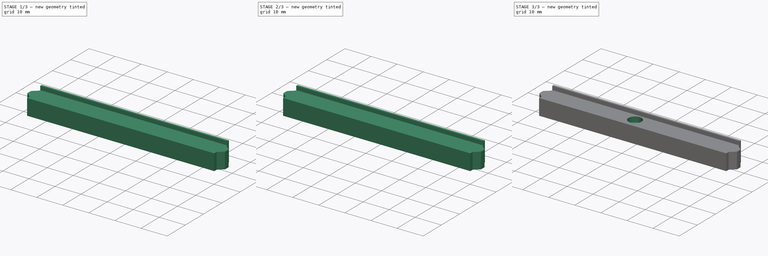
[diagram: build sequence overview — one tinted view per stage of 3, left to right]
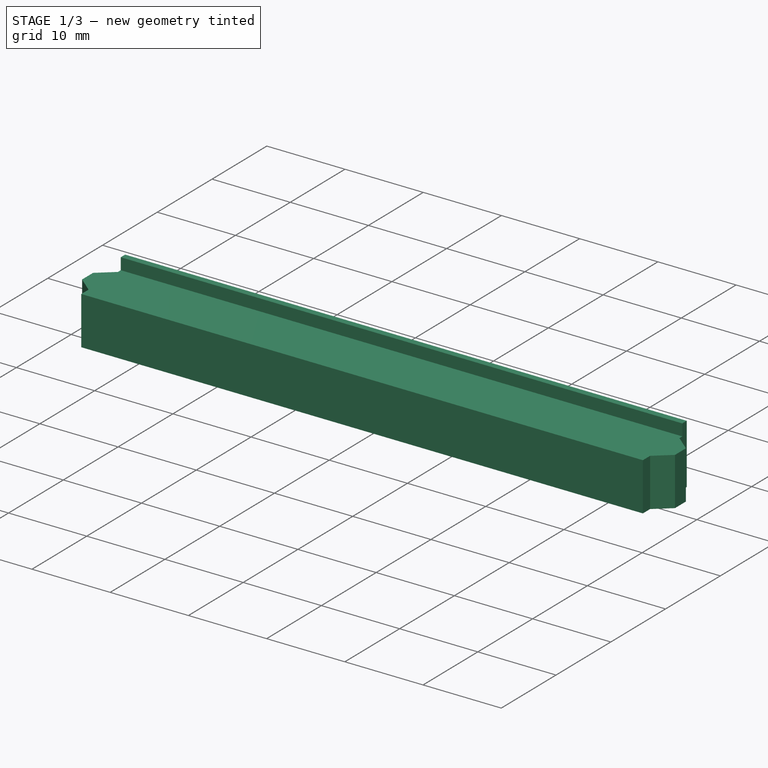
[diagram: stage 1 of 3 — iso view after this stage's code; geometry added in this stage tinted green]
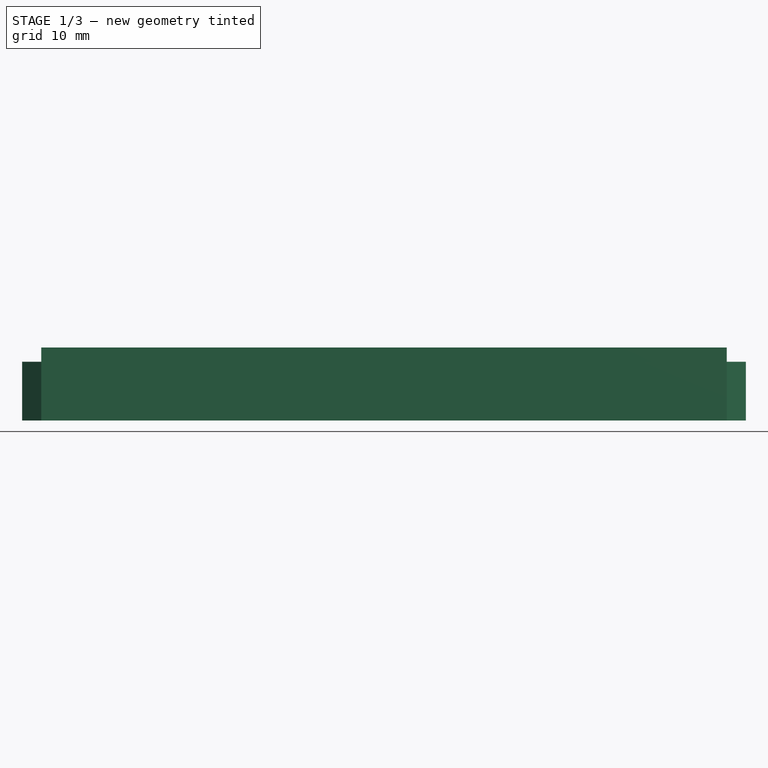
[diagram: stage 1 of 3 — front view after this stage's code; geometry added in this stage tinted green]
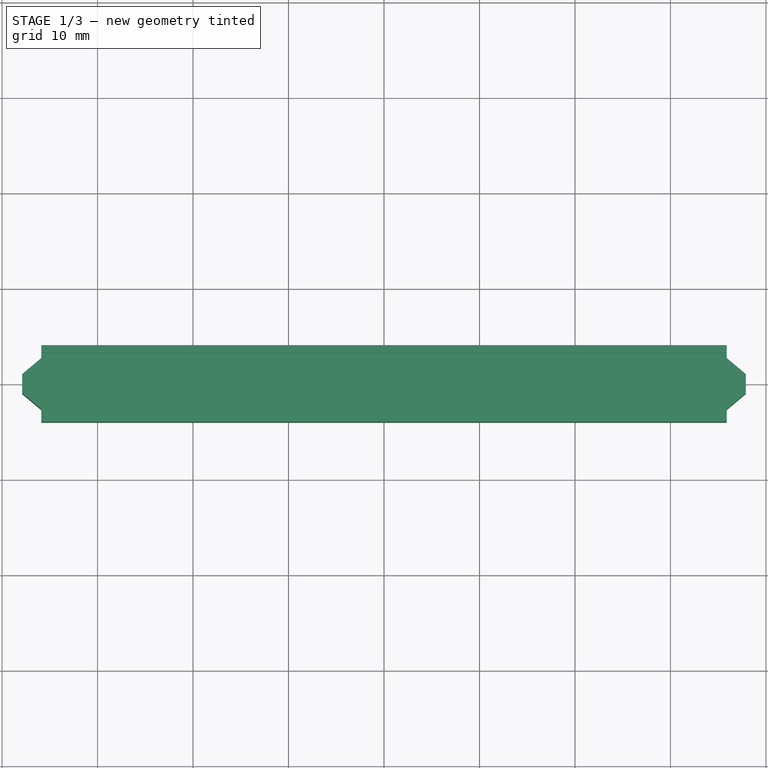
[diagram: stage 1 of 3 — top view after this stage's code; geometry added in this stage tinted green]
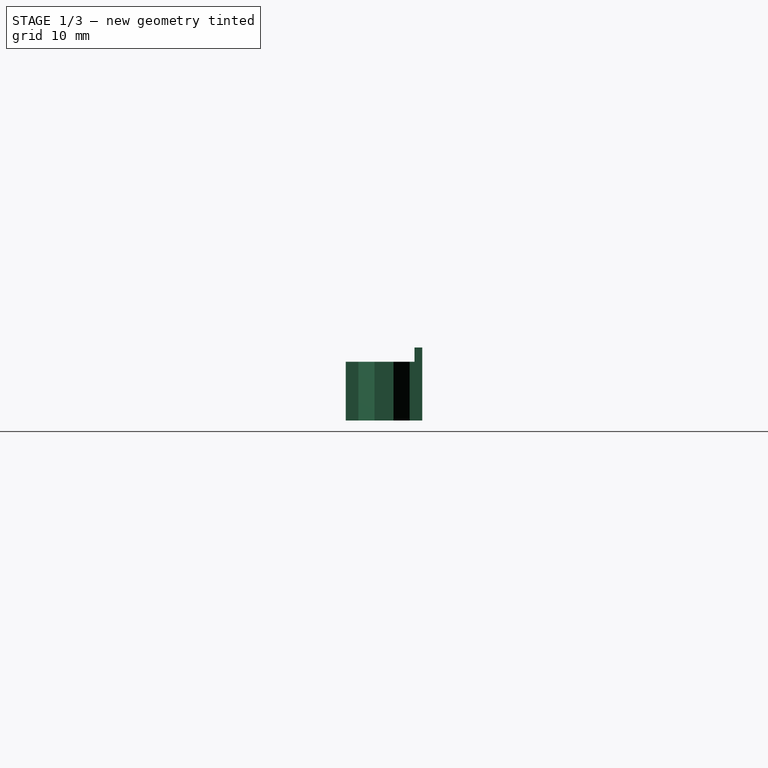
[diagram: stage 1 of 3 — right view after this stage's code; geometry added in this stage tinted green]
FCSTD DOCUMENT  (FreeCAD 2022.1021R26244 +5249 (Git))
Label: pack_top_conn_beam
License: All rights reserved
LicenseURL: http://en.wikipedia.org/wiki/All_rights_reserved
objects: Sketcher::SketchObject×4, PartDesign::Pad×4, PartDesign::Fillet×1, PartDesign::Body×1
note: 24 computed .brp shape members not serialized (recipe doc carries the construction recipe); baked Part::Feature solids carry a one-line shape summary decoded from their .brp

FEATURE [Sketcher::SketchObject] Sketch
  ArcFitTolerance = 1e-06
  AttachmentSupport = -> [XY_Plane]
  ExternalBSplineMaxDegree = 5
  ExternalBSplineTolerance = 0.0001
  FullyConstrained = true
  InternalTolerance = 1e-06
  MakeInternals = false
  MapMode = 5
  Support = -> [XY_Plane]
  TreeRank = 13
  expr: Constraints[20] = 72 - 0.2
  sketch-geometry (14):
    g0: LineSegment StartX=-35.9 StartY=4 StartZ=0 EndX=35.9 EndY=4 EndZ=0
    g1: LineSegment StartX=35.9 StartY=4 StartZ=0 EndX=35.9 EndY=2.6782 EndZ=0
    g2: LineSegment StartX=35.9 StartY=2.6782 StartZ=0 EndX=37.9 EndY=1 EndZ=0
    g3: LineSegment StartX=37.9 StartY=1 StartZ=0 EndX=37.9 EndY=-1 EndZ=0
    g4: LineSegment StartX=37.9 StartY=-1 StartZ=0 EndX=35.9 EndY=-2.6782 EndZ=0
    g5: LineSegment StartX=35.9 StartY=-2.6782 StartZ=0 EndX=35.9 EndY=-4 EndZ=0
    g6: LineSegment StartX=35.9 StartY=-4 StartZ=0 EndX=-35.9 EndY=-4 EndZ=0
    g7: LineSegment StartX=-35.9 StartY=-4 StartZ=0 EndX=-35.9 EndY=-2.6782 EndZ=0
    g8: LineSegment StartX=-35.9 StartY=-2.6782 StartZ=0 EndX=-37.9 EndY=-1 EndZ=0
    g9: LineSegment StartX=-37.9 StartY=-1 StartZ=0 EndX=-37.9 EndY=1 EndZ=0
    g10: LineSegment StartX=-37.9 StartY=1 StartZ=0 EndX=-35.9 EndY=2.6782 EndZ=0
    g11: LineSegment StartX=-35.9 StartY=2.6782 StartZ=0 EndX=-35.9 EndY=4 EndZ=0
    g12: GeomPoint [constr] X=-37.9 Y=0 Z=0
    g13: GeomPoint [constr] X=37.9 Y=0 Z=0
  constraints (37):
    c: Horizontal(g0)
    c: Coincident(g1,g0)
    c: Vertical(g1)
    c: Coincident(g2,g1)
    c: Coincident(g3,g2)
    c: Vertical(g3)
    c: Coincident(g4,g3)
    c: Coincident(g5,g4)
    c: Vertical(g5)
    c: Coincident(g6,g5)
    c: Horizontal(g6)
    c: Coincident(g7,g6)
    c: Vertical(g7)
    c: Coincident(g8,g7)
    c: Coincident(g9,g8)
    c: Vertical(g9)
    c: Coincident(g10,g9)
    c: Coincident(g11,g10)
    c: Coincident(g11,g0)
    c: Vertical(g11)
    c: DistanceX(g0,g0) = 71.8
    c: Vertical(g10,g7)
    c: Vertical(g1,g4)
    c: Symmetric(g6,g0,g-1)
    c: DistanceY(g3,g3) = 2
    c: DistanceY(g9,g9) = 2
    c: Angle(g8,g7) = 2.26893
    c: Angle(g11,g10) = 2.26893
    c: Angle(g2,g1) = 2.26893
    c: Angle(g5,g4) = 2.26893
    c: DistanceX(g0,g2) = 2
    c: DistanceX(g9,g0) = 2
    c: Symmetric(g3,g2,g13)
    c: Symmetric(g9,g8,g12)
    c: Horizontal(g12,g-1)
    c: Horizontal(g13,g-1)
    c: DistanceY(g6,g0) = 8
FEATURE [PartDesign::Pad] Pad
  AddSubType = 0
  AlongSketchNormal = false
  AutoTaperInnerAngle = true
  CheckUpToFaceLimits = true
  ClaimChildren = false
  Direction = (0,0,1)
  Fit = 0
  FitJoin = 0
  InnerFit = 0
  InnerFitJoin = 0
  Length = 6.15
  Length2 = 100
  Linearize = true
  NewSolid = false
  Profile = -> Sketch
  Suppress = false
  TaperInnerAngle = 0
  TaperInnerAngleRev = 0
  TreeRank = 14
  Type = 0
  _ProfileBasedVersion = 1
FEATURE [Sketcher::SketchObject] Sketch001
  ArcFitTolerance = 1e-06
  AttachmentSupport = -> [Pad]
  ExternalBSplineMaxDegree = 5
  ExternalBSplineTolerance = 0.0001
  ExternalGeometry = -> [Pad]
  FullyConstrained = true
  InternalTolerance = 1e-06
  MakeInternals = false
  MapMode = 5
  Placement = pos=(0,0,6.15) rot=(0,0,1;0rad)
  Support = -> [Pad]
  TreeRank = 15
  sketch-geometry (4):
    g0: LineSegment StartX=-35.9 StartY=4 StartZ=0 EndX=35.9 EndY=4 EndZ=0
    g1: LineSegment StartX=35.9 StartY=4 StartZ=0 EndX=35.9 EndY=3.2 EndZ=0
    g2: LineSegment StartX=35.9 StartY=3.2 StartZ=0 EndX=-35.9 EndY=3.2 EndZ=0
    g3: LineSegment StartX=-35.9 StartY=3.2 StartZ=0 EndX=-35.9 EndY=4 EndZ=0
  constraints (10):
    c: Coincident(g0,g1)
    c: Coincident(g1,g2)
    c: Coincident(g2,g3)
    c: Coincident(g3,g0)
    c: Horizontal(g2)
    c: Vertical(g1)
    c: Vertical(g3)
    c: DistanceY(g1,g1) = 0.8
    c: Coincident(g0,g-3)
    c: Coincident(g0,g-4)
FEATURE [PartDesign::Pad] Pad001
  AddSubType = 0
  AlongSketchNormal = false
  AutoTaperInnerAngle = true
  BaseFeature = -> Pad
  CheckUpToFaceLimits = true
  ClaimChildren = false
  Direction = (0,0,1)
  Fit = 0
  FitJoin = 0
  InnerFit = 0
  InnerFitJoin = 0
  Length = 1.5
  Length2 = 100
  Linearize = true
  NewSolid = false
  Profile = -> Sketch001
  Suppress = false
  TaperInnerAngle = 0
  TaperInnerAngleRev = 0
  TreeRank = 16
  Type = 0
  _ProfileBasedVersion = 1
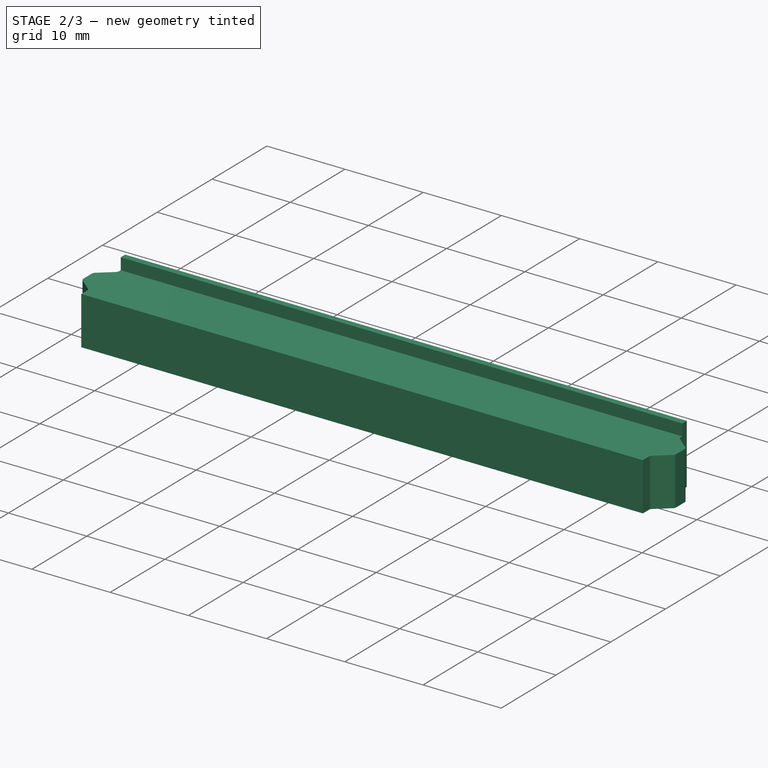
[diagram: stage 2 of 3 — iso view after this stage's code; geometry added in this stage tinted green]
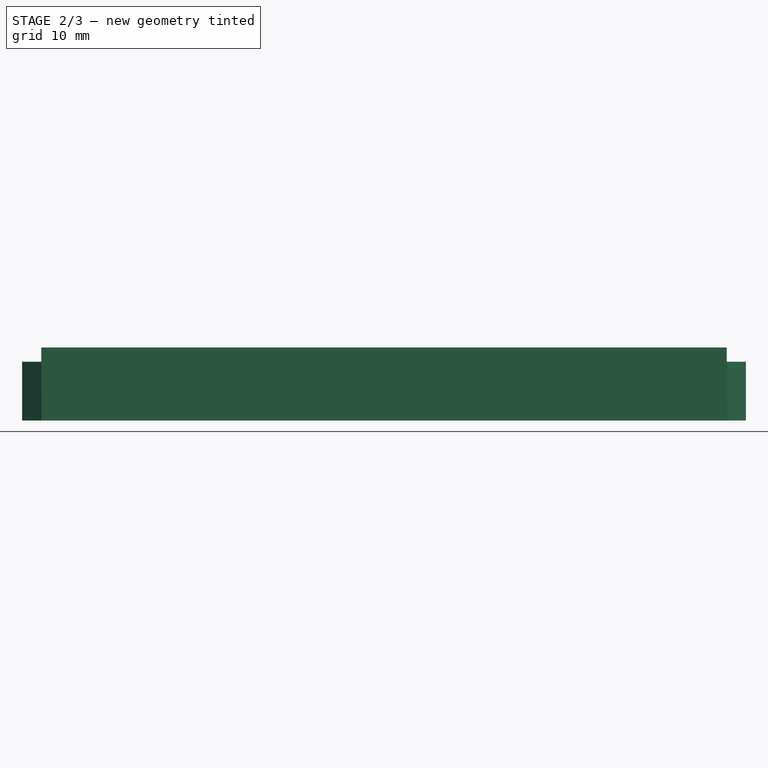
[diagram: stage 2 of 3 — front view after this stage's code; geometry added in this stage tinted green]
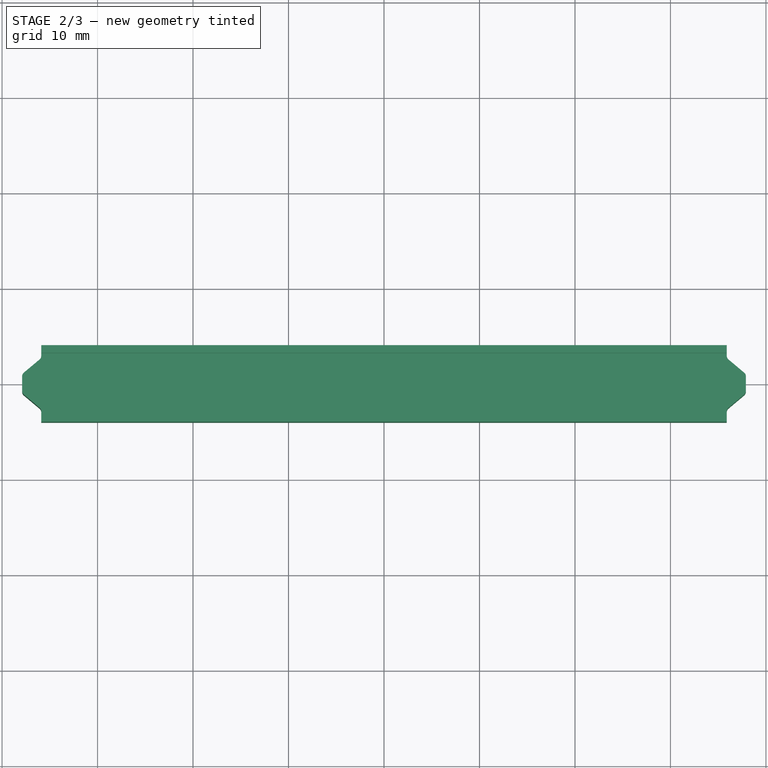
[diagram: stage 2 of 3 — top view after this stage's code; geometry added in this stage tinted green]
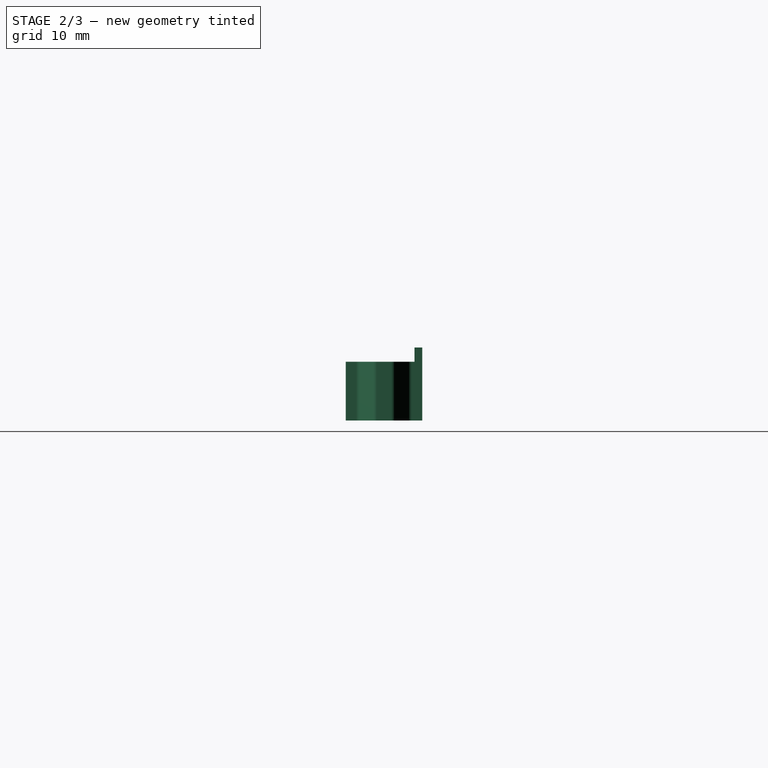
[diagram: stage 2 of 3 — right view after this stage's code; geometry added in this stage tinted green]
FEATURE [PartDesign::Fillet] Fillet
  AddSubType = 0
  Base = -> Pad001 [Edge42,Edge41,Edge38,Edge9,Edge45,Edge46,Edge25,Edge5]
  BaseFeature = -> Pad001
  NewSolid = false
  Radius = 0.5
  SupportTransform = false
  Suppress = false
  TreeRank = 17
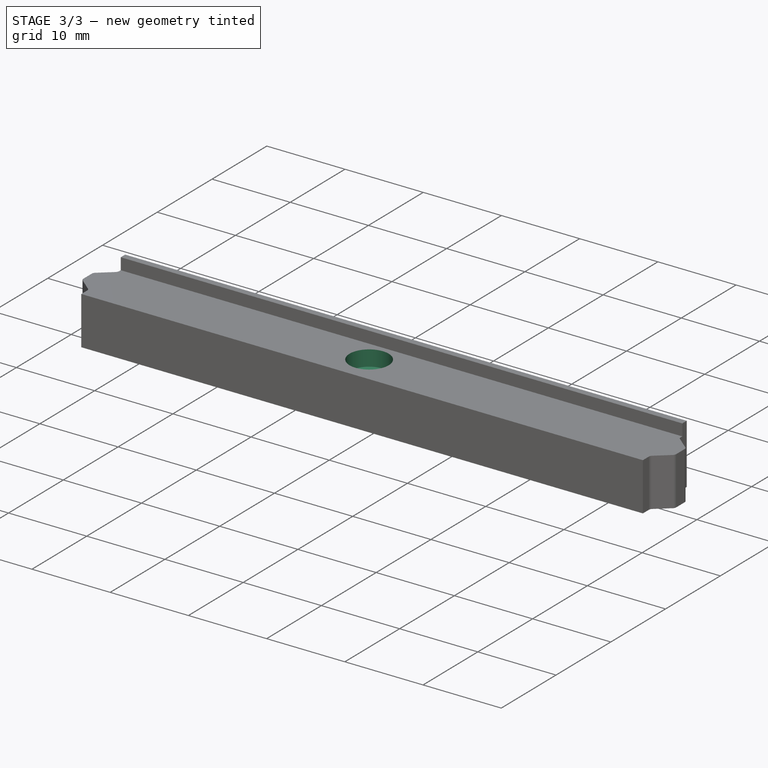
[diagram: stage 3 of 3 — iso view after this stage's code; geometry added in this stage tinted green]
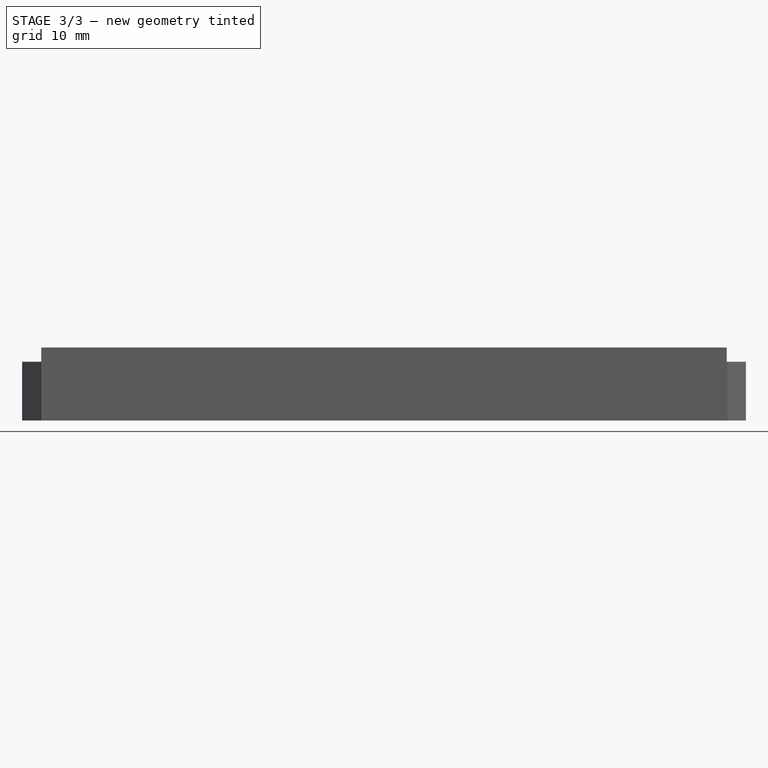
[diagram: stage 3 of 3 — front view after this stage's code; geometry added in this stage tinted green]
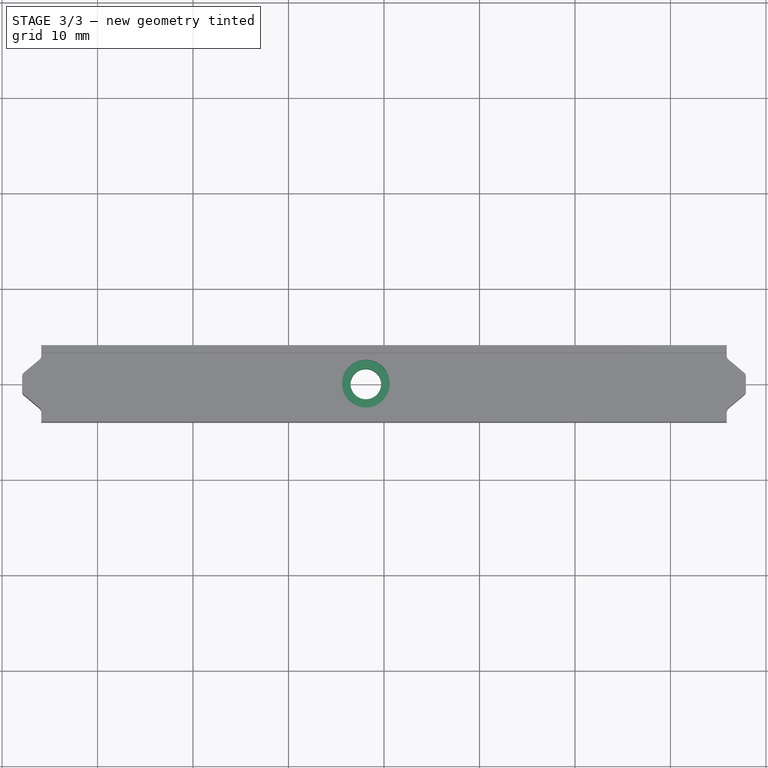
[diagram: stage 3 of 3 — top view after this stage's code; geometry added in this stage tinted green]
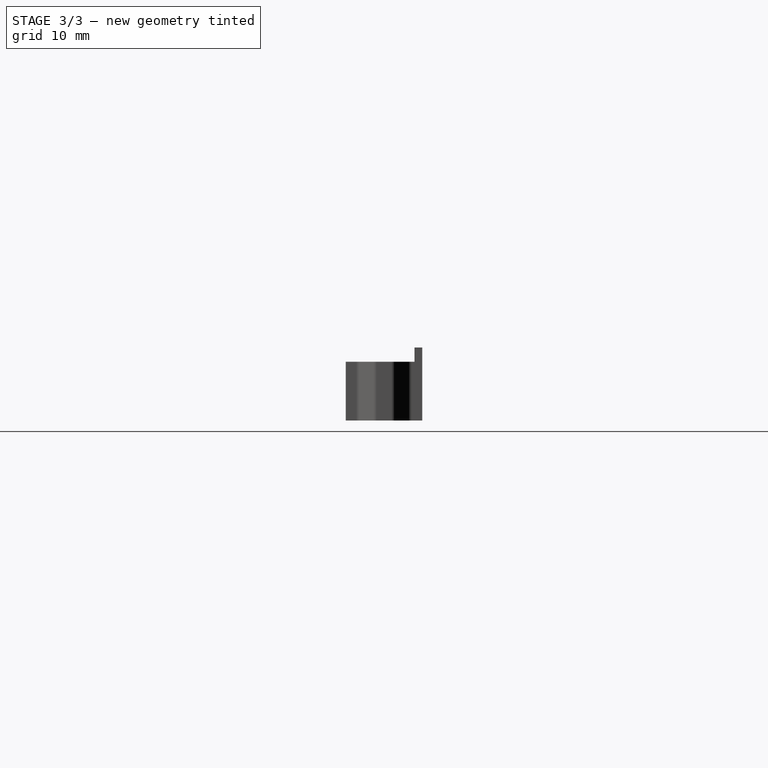
[diagram: stage 3 of 3 — right view after this stage's code; geometry added in this stage tinted green]
FEATURE [Sketcher::SketchObject] Sketch002
  ArcFitTolerance = 1e-06
  AttachmentSupport = -> [Fillet]
  ExternalBSplineMaxDegree = 5
  ExternalBSplineTolerance = 0.0001
  ExternalGeometry = -> [Fillet]
  FullyConstrained = true
  InternalTolerance = 1e-06
  MakeInternals = false
  MapMode = 5
  Placement = pos=(0,0,6.15) rot=(0,0,1;0rad)
  Support = -> [Fillet]
  TreeRank = 18
  sketch-geometry (1):
    g0: Circle CenterX=-1.9 CenterY=-3e-16 CenterZ=0 NormalX=0 NormalY=0 NormalZ=1 AngleXU=0 Radius=1.6
  constraints (3):
    c: Diameter(g0) = 3.2
    c: DistanceX(g-3,g0) = 34
    c: DistanceY(g0,g-3) = 4
FEATURE [PartDesign::Pad] Pad002
  AddSubType = 1
  AlongSketchNormal = false
  AutoTaperInnerAngle = true
  BaseFeature = -> Fillet
  CheckUpToFaceLimits = true
  ClaimChildren = false
  Direction = (0,0,1)
  Fit = 0
  FitJoin = 0
  InnerFit = 0
  InnerFitJoin = 0
  Length = 10
  Length2 = 100
  Linearize = true
  NewSolid = false
  Profile = -> Sketch002
  Reversed = true
  Suppress = false
  TaperInnerAngle = 0
  TaperInnerAngleRev = 0
  TreeRank = 19
  Type = 2
  _ProfileBasedVersion = 1
FEATURE [Sketcher::SketchObject] Sketch003
  ArcFitTolerance = 1e-06
  AttachmentSupport = -> [Pad002]
  ExternalBSplineMaxDegree = 5
  ExternalBSplineTolerance = 0.0001
  ExternalGeometry = -> [Pad002]
  FullyConstrained = true
  InternalTolerance = 1e-06
  MakeInternals = false
  MapMode = 5
  Placement = pos=(0,0,6.15) rot=(0,0,1;0rad)
  Support = -> [Pad002]
  TreeRank = 20
  sketch-geometry (1):
    g0: Circle CenterX=-1.9 CenterY=-3e-16 CenterZ=0 NormalX=0 NormalY=0 NormalZ=1 AngleXU=0 Radius=2.5
  constraints (2):
    c: Diameter(g0) = 5
    c: Coincident(g0,g-3)
FEATURE [PartDesign::Pad] Pad003
  AddSubType = 1
  AlongSketchNormal = false
  AutoTaperInnerAngle = true
  BaseFeature = -> Pad002
  CheckUpToFaceLimits = true
  ClaimChildren = false
  Direction = (0,0,1)
  Fit = 0
  FitJoin = 0
  InnerFit = 0
  InnerFitJoin = 0
  Length = 2
  Length2 = 100
  Linearize = true
  NewSolid = false
  Profile = -> Sketch003
  Reversed = true
  Suppress = false
  TaperInnerAngle = 0
  TaperInnerAngleRev = 0
  TreeRank = 21
  Type = 0
  _ProfileBasedVersion = 1
FEATURE [PartDesign::Body] Body
  AutoGroupSolids = false
  ClaimAllChildren = false
  ExportMode = 0
  Group = -> [Sketch,Pad,Sketch001,Pad001,Fillet,Sketch002,Pad002,Sketch003,Pad003]
  Origin = -> Origin
  Tip = -> Pad003
  TreeRank = 12
  _ExportChildren = -> [Pad,Pad001,Fillet,Pad002,Pad003]
  _GroupVersion = 1
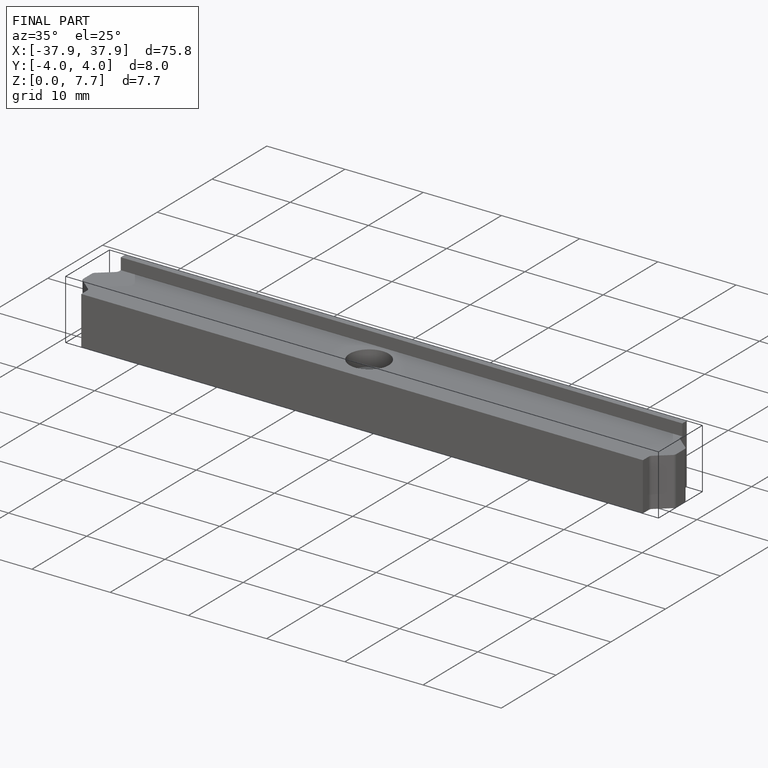
[diagram: finished part — iso view with bounding-box wireframe]
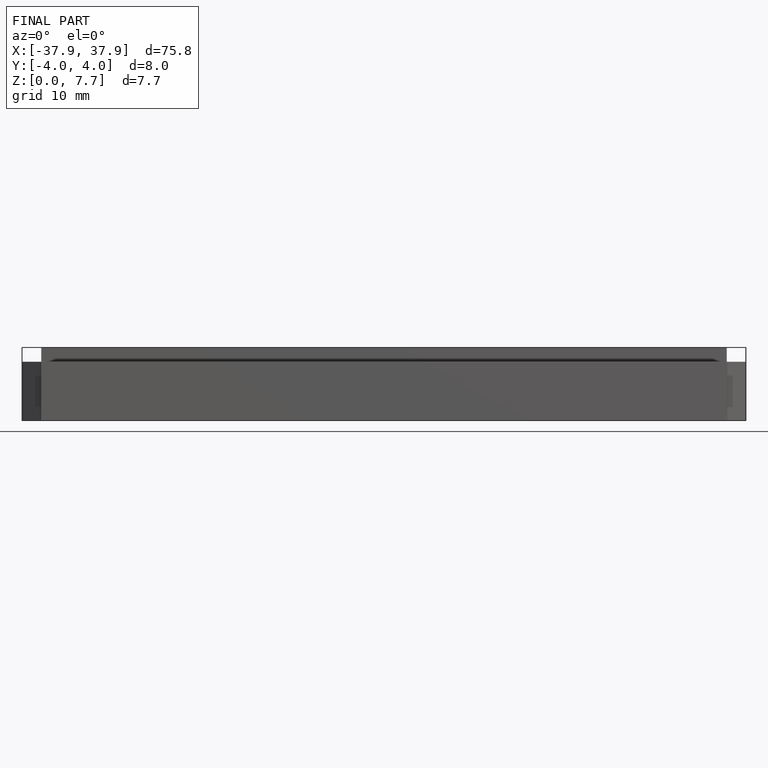
[diagram: finished part — front view with bounding-box wireframe]
